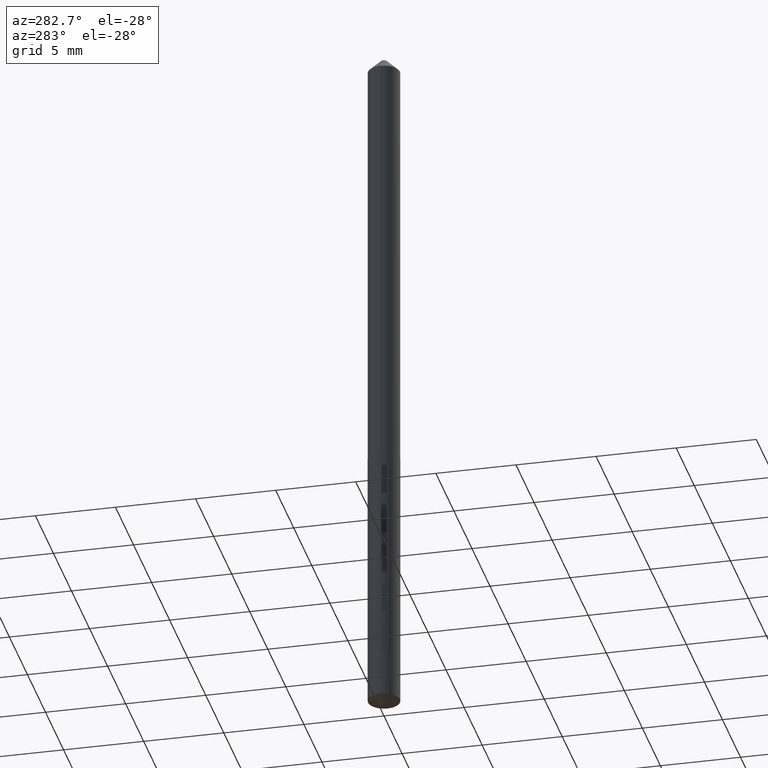
[diagram: clean part render]
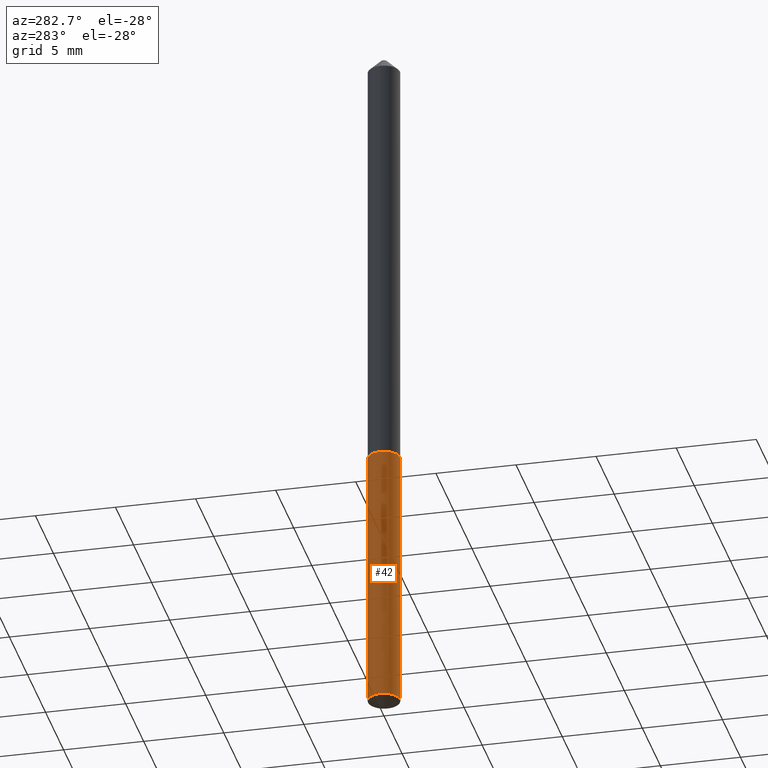
[diagram: same view with one face highlighted and labeled with its STEP entity id]
A machine part, auxiliary view. The second image highlights one B-rep face of the part: STEP entity #42.
In plain terms, the highlighted cylindrical surface (edge-blend (fillet) strip) has radius 0.997 mm, axis along (-0, 0, 1).
Its self-contained STEP definition (entity closure, byte-faithful):
#20 = LINE ( 'NONE', #149, #75 ) ;
#28 = VERTEX_POINT ( 'NONE', #40 ) ;
#40 = CARTESIAN_POINT ( 'NONE',  ( 2.788880237858818240E-16, 0.03924999999999394251, -1.735714168305051652 ) ) ;
#42 = ADVANCED_FACE ( 'NONE', ( #43 ), #244, .T. ) ;
#43 = FACE_OUTER_BOUND ( 'NONE', #67, .T. ) ;
#45 = DIRECTION ( 'NONE',  ( -6.982962677686264344E-15, -1.000000000000000000, 3.480061138425812861E-15 ) ) ;
#47 = AXIS2_PLACEMENT_3D ( 'NONE', #368, #195, #45 ) ;
#52 = CIRCLE ( 'NONE', #85, 0.03925000000000000017 ) ;
#67 = EDGE_LOOP ( 'NONE', ( #227, #131, #186, #240 ) ) ;
#75 = VECTOR ( 'NONE', #351, 39.37007874015748143 ) ;
#85 = AXIS2_PLACEMENT_3D ( 'NONE', #266, #363, #328 ) ;
#122 = EDGE_CURVE ( 'NONE', #28, #210, #285, .T. ) ;
#123 = VERTEX_POINT ( 'NONE', #317 ) ;
#131 = ORIENTED_EDGE ( 'NONE', *, *, #122, .T. ) ;
#148 = CARTESIAN_POINT ( 'NONE',  ( 4.244637499587423972E-29, -6.060209841065438643E-15, -1.735714168305051652 ) ) ;
#149 = CARTESIAN_POINT ( 'NONE',  ( 2.788880237858656524E-16, 0.03924999999999623235, -1.078500000000000014 ) ) ;
#182 = CARTESIAN_POINT ( 'NONE',  ( -2.740812850991435691E-16, -0.03925000000000607864, -1.735714168305051430 ) ) ;
#186 = ORIENTED_EDGE ( 'NONE', *, *, #326, .T. ) ;
#195 = DIRECTION ( 'NONE',  ( -2.445472830054324931E-29, 3.491475576433443584E-15, 1.000000000000000000 ) ) ;
#203 = AXIS2_PLACEMENT_3D ( 'NONE', #148, #376, #370 ) ;
#207 = EDGE_CURVE ( 'NONE', #28, #350, #20, .T. ) ;
#210 = VERTEX_POINT ( 'NONE', #182 ) ;
#213 = CARTESIAN_POINT ( 'NONE',  ( -2.740812850991594942E-16, -0.03925000000000376105, -1.078499999999999792 ) ) ;
#227 = ORIENTED_EDGE ( 'NONE', *, *, #207, .F. ) ;
#240 = ORIENTED_EDGE ( 'NONE', *, *, #288, .F. ) ;
#244 = CYLINDRICAL_SURFACE ( 'NONE', #47, 0.03925000000000000017 ) ;
#261 = LINE ( 'NONE', #213, #347 ) ;
#266 = CARTESIAN_POINT ( 'NONE',  ( 2.637438107470669995E-29, -3.765562623942332293E-15, -1.078500000000000014 ) ) ;
#285 = CIRCLE ( 'NONE', #203, 0.03925000000000000017 ) ;
#288 = EDGE_CURVE ( 'NONE', #350, #123, #52, .T. ) ;
#317 = CARTESIAN_POINT ( 'NONE',  ( -2.740812850991594942E-16, -0.03925000000000376105, -1.078499999999999792 ) ) ;
#325 = CARTESIAN_POINT ( 'NONE',  ( 2.788880237858818240E-16, 0.03924999999999623235, -1.078500000000000014 ) ) ;
#326 = EDGE_CURVE ( 'NONE', #210, #123, #261, .T. ) ;
#328 = DIRECTION ( 'NONE',  ( -6.982962677686264344E-15, -1.000000000000000000, 3.480061138425812861E-15 ) ) ;
#331 = DIRECTION ( 'NONE',  ( -2.445472830054324931E-29, 3.491475576433443584E-15, 1.000000000000000000 ) ) ;
#347 = VECTOR ( 'NONE', #331, 39.37007874015748143 ) ;
#350 = VERTEX_POINT ( 'NONE', #325 ) ;
#351 = DIRECTION ( 'NONE',  ( -2.445472830054324931E-29, 3.491475576433443584E-15, 1.000000000000000000 ) ) ;
#363 = DIRECTION ( 'NONE',  ( -2.445472830054324931E-29, 3.491475576433443584E-15, 1.000000000000000000 ) ) ;
#368 = CARTESIAN_POINT ( 'NONE',  ( 2.637438107470669995E-29, -3.765562623942332293E-15, -1.078500000000000014 ) ) ;
#370 = DIRECTION ( 'NONE',  ( -6.982962677686264344E-15, -1.000000000000000000, 6.960122276851625723E-15 ) ) ;
#376 = DIRECTION ( 'NONE',  ( -2.445472830054324931E-29, 3.491475576433443584E-15, 1.000000000000000000 ) ) ;